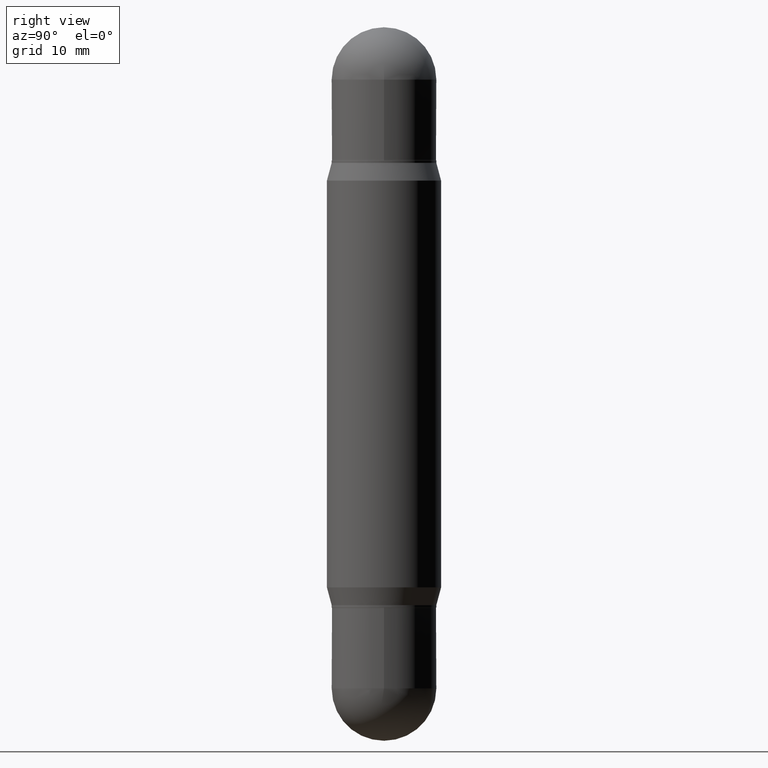
[diagram: clean part render]
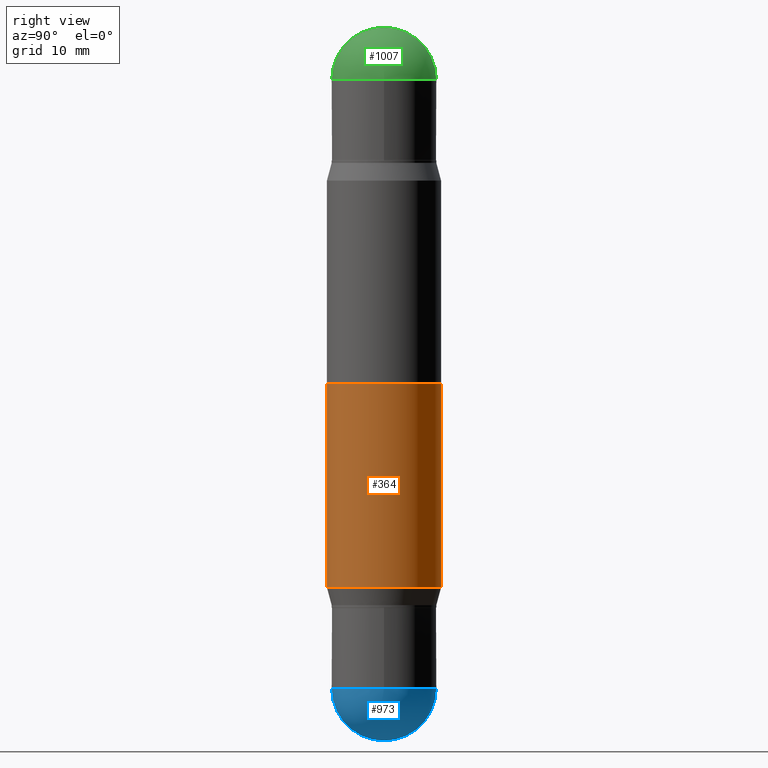
[diagram: same view with three faces highlighted in distinct colors, each labeled with its STEP entity id]
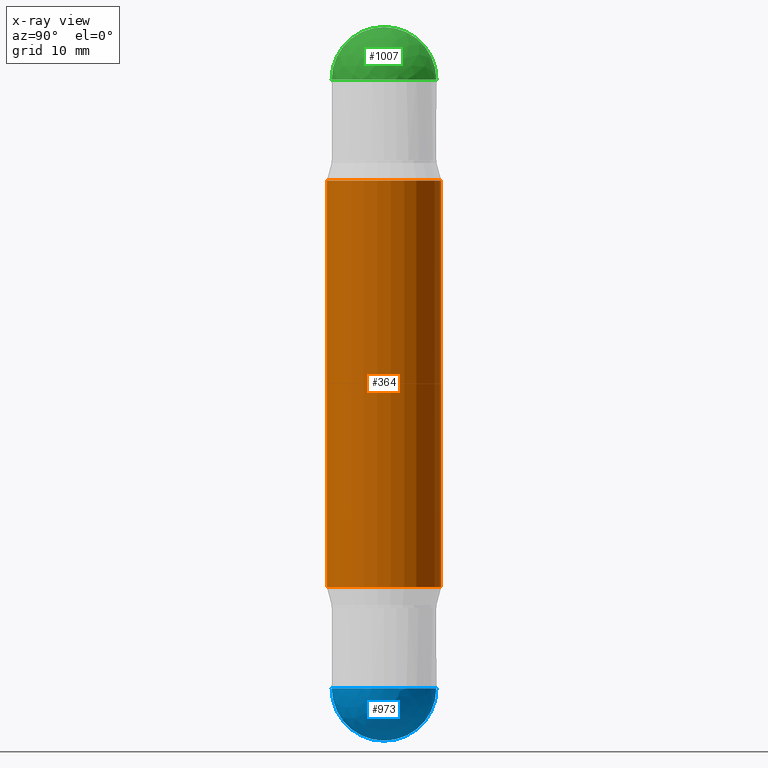
[diagram: x-ray of the same camera — body ghosted, the three highlighted faces saturated]
A machine part, right view with three faces highlighted in distinct colors.
The next image is the same camera in x-ray (body ghosted, the three faces saturated) — at least one of them is partly hidden behind the body in this view.
Their STEP definitions:

[orange] entity #364 — the highlighted cylindrical surface (partial cylindrical patch) has radius 5.9995 mm, axis along (-0, -0, -1).
#34 = LINE ( 'NONE', #677, #587 ) ;
#37 = DIRECTION ( 'NONE',  ( -6.982962677686265922E-15, -1.000000000000000000, 3.469747663417777397E-15 ) ) ;
#55 = LINE ( 'NONE', #143, #1042 ) ;
#72 = VERTEX_POINT ( 'NONE', #790 ) ;
#133 = ORIENTED_EDGE ( 'NONE', *, *, #1094, .T. ) ;
#139 = AXIS2_PLACEMENT_3D ( 'NONE', #256, #262, #855 ) ;
#143 = CARTESIAN_POINT ( 'NONE',  ( -1.649375784469495934E-15, -0.2362000000000102629, -2.952799999999998537 ) ) ;
#177 = DIRECTION ( 'NONE',  ( -6.982962677686265922E-15, -1.000000000000000000, 4.626330217890369336E-15 ) ) ;
#181 = VERTEX_POINT ( 'NONE', #560 ) ;
#194 = CIRCLE ( 'NONE', #139, 0.2361999999999999933 ) ;
#205 = CARTESIAN_POINT ( 'NONE',  ( -1.649375784469439333E-15, -0.2362000000000080979, -2.318265201631270589 ) ) ;
#223 = ORIENTED_EDGE ( 'NONE', *, *, #620, .F. ) ;
#226 = DIRECTION ( 'NONE',  ( -2.443493668867244593E-29, -3.476785957920772271E-15, -1.000000000000000000 ) ) ;
#241 = CARTESIAN_POINT ( 'NONE',  ( 0.000000000000000000, -1.029212584771408642E-14, -2.952799999999999869 ) ) ;
#256 = CARTESIAN_POINT ( 'NONE',  ( 5.664666342941258736E-29, -2.232013947946112511E-15, -0.6345347983687283921 ) ) ;
#262 = DIRECTION ( 'NONE',  ( 2.443493668867244874E-29, 3.476785957920772665E-15, 1.000000000000000000 ) ) ;
#346 = VERTEX_POINT ( 'NONE', #931 ) ;
#364 = ADVANCED_FACE ( 'NONE', ( #670 ), #1012, .T. ) ;
#407 = ORIENTED_EDGE ( 'NONE', *, *, #755, .F. ) ;
#457 = DIRECTION ( 'NONE',  ( -2.443493668867244874E-29, 3.494309847900201171E-15, 1.000000000000000000 ) ) ;
#469 = CIRCLE ( 'NONE', #700, 0.2361999999999999933 ) ;
#519 = EDGE_LOOP ( 'NONE', ( #223, #407, #133, #1096 ) ) ;
#538 = CARTESIAN_POINT ( 'NONE',  ( 5.664666342941258736E-29, -8.100736924104496665E-15, -2.318265201631271477 ) ) ;
#560 = CARTESIAN_POINT ( 'NONE',  ( 1.620449627073671761E-15, 0.2361999999999919164, -2.318265201631272365 ) ) ;
#582 = DIRECTION ( 'NONE',  ( -2.443493668867244874E-29, -3.476785957920772665E-15, -1.000000000000000000 ) ) ;
#587 = VECTOR ( 'NONE', #226, 39.37007874015748143 ) ;
#620 = EDGE_CURVE ( 'NONE', #346, #181, #34, .T. ) ;
#670 = FACE_OUTER_BOUND ( 'NONE', #519, .T. ) ;
#677 = CARTESIAN_POINT ( 'NONE',  ( 1.620449627073635473E-15, 0.2361999999999897237, -2.952800000000000757 ) ) ;
#700 = AXIS2_PLACEMENT_3D ( 'NONE', #538, #457, #37 ) ;
#755 = EDGE_CURVE ( 'NONE', #72, #346, #194, .T. ) ;
#790 = CARTESIAN_POINT ( 'NONE',  ( -1.649375784469439136E-15, -0.2362000000000022137, -0.6345347983687275040 ) ) ;
#830 = DIRECTION ( 'NONE',  ( -2.443493668867244593E-29, -3.476785957920772271E-15, -1.000000000000000000 ) ) ;
#855 = DIRECTION ( 'NONE',  ( -6.982962677686265922E-15, -1.000000000000000000, 3.469747663417777397E-15 ) ) ;
#895 = AXIS2_PLACEMENT_3D ( 'NONE', #241, #582, #177 ) ;
#931 = CARTESIAN_POINT ( 'NONE',  ( 1.620449627073692271E-15, 0.2361999999999977728, -0.6345347983687291693 ) ) ;
#971 = VERTEX_POINT ( 'NONE', #205 ) ;
#1011 = EDGE_CURVE ( 'NONE', #971, #181, #469, .T. ) ;
#1012 = CYLINDRICAL_SURFACE ( 'NONE', #895, 0.2361999999999999933 ) ;
#1042 = VECTOR ( 'NONE', #830, 39.37007874015748143 ) ;
#1094 = EDGE_CURVE ( 'NONE', #72, #971, #55, .T. ) ;
#1096 = ORIENTED_EDGE ( 'NONE', *, *, #1011, .T. ) ;

[blue] entity #973 — the highlighted spherical surface has radius 5.5004 mm.
#32 = DIRECTION ( 'NONE',  ( -1.000000000000000000, 6.982962677686265922E-15, -4.883557194083112340E-29 ) ) ;
#62 = AXIS2_PLACEMENT_3D ( 'NONE', #723, #32, #124 ) ;
#65 = ORIENTED_EDGE ( 'NONE', *, *, #1068, .T. ) ;
#124 = DIRECTION ( 'NONE',  ( 6.982962677686265922E-15, 1.000000000000000000, -2.523064413451173785E-15 ) ) ;
#146 = VERTEX_POINT ( 'NONE', #208 ) ;
#157 = CARTESIAN_POINT ( 'NONE',  ( 6.713302002095624841E-29, -9.522220978585379288E-15, -2.736249999999999627 ) ) ;
#178 = EDGE_CURVE ( 'NONE', #146, #394, #1073, .T. ) ;
#208 = CARTESIAN_POINT ( 'NONE',  ( 0.2165500000000001035, -1.048151426624058891E-14, -2.736249999999999627 ) ) ;
#219 = SPHERICAL_SURFACE ( 'NONE', #62, 0.2165500000000003811 ) ;
#227 = CARTESIAN_POINT ( 'NONE',  ( -1.538680294288431227E-15, -0.2165500000000098180, -2.736249999999999183 ) ) ;
#228 = ORIENTED_EDGE ( 'NONE', *, *, #178, .F. ) ;
#239 = VERTEX_POINT ( 'NONE', #227 ) ;
#258 = CARTESIAN_POINT ( 'NONE',  ( 1.512160567853029651E-15, 0.2165499999999906944, -2.736250000000000071 ) ) ;
#266 = CIRCLE ( 'NONE', #303, 0.2165500000000001035 ) ;
#303 = AXIS2_PLACEMENT_3D ( 'NONE', #589, #500, #681 ) ;
#310 = CARTESIAN_POINT ( 'NONE',  ( 7.252127585071107106E-29, -1.026504139929409708E-14, -2.952799999999999869 ) ) ;
#316 = DIRECTION ( 'NONE',  ( -7.105427357601001070E-15, -1.000000000000000000, 0.000000000000000000 ) ) ;
#319 = DIRECTION ( 'NONE',  ( 1.000000000000000000, -6.982962677686265922E-15, 4.883557194083112340E-29 ) ) ;
#355 = EDGE_CURVE ( 'NONE', #239, #146, #266, .T. ) ;
#367 = ORIENTED_EDGE ( 'NONE', *, *, #613, .F. ) ;
#386 = FACE_OUTER_BOUND ( 'NONE', #867, .T. ) ;
#394 = VERTEX_POINT ( 'NONE', #258 ) ;
#493 = DIRECTION ( 'NONE',  ( 1.000000000000000000, -6.982962677686270655E-15, 0.000000000000000000 ) ) ;
#500 = DIRECTION ( 'NONE',  ( -2.445468806185136597E-29, 3.491481338843145583E-15, 1.000000000000000000 ) ) ;
#569 = DIRECTION ( 'NONE',  ( -2.445468806185136597E-29, 3.491481338843145583E-15, 1.000000000000000000 ) ) ;
#589 = CARTESIAN_POINT ( 'NONE',  ( 6.691414020924079206E-29, -9.553565813409555750E-15, -2.736249999999999627 ) ) ;
#613 = EDGE_CURVE ( 'NONE', #1030, #239, #1077, .T. ) ;
#653 = DIRECTION ( 'NONE',  ( -1.000000000000000000, 7.105427357601001070E-15, -4.926315508542082329E-29 ) ) ;
#660 = AXIS2_PLACEMENT_3D ( 'NONE', #992, #569, #493 ) ;
#669 = CARTESIAN_POINT ( 'NONE',  ( 6.713302002095624841E-29, -9.522220978585379288E-15, -2.736249999999999627 ) ) ;
#681 = DIRECTION ( 'NONE',  ( 1.000000000000000000, -6.982962677686270655E-15, 0.000000000000000000 ) ) ;
#723 = CARTESIAN_POINT ( 'NONE',  ( 6.713302002095624841E-29, -9.522220978585379288E-15, -2.736249999999999627 ) ) ;
#737 = CIRCLE ( 'NONE', #1093, 0.2165500000000003811 ) ;
#757 = ORIENTED_EDGE ( 'NONE', *, *, #355, .F. ) ;
#867 = EDGE_LOOP ( 'NONE', ( #367, #65, #228, #757 ) ) ;
#973 = ADVANCED_FACE ( 'NONE', ( #386 ), #219, .T. ) ;
#992 = CARTESIAN_POINT ( 'NONE',  ( 6.691414020924079206E-29, -9.553565813409555750E-15, -2.736249999999999627 ) ) ;
#1010 = DIRECTION ( 'NONE',  ( 6.982962677686265922E-15, 1.000000000000000000, 0.000000000000000000 ) ) ;
#1030 = VERTEX_POINT ( 'NONE', #310 ) ;
#1068 = EDGE_CURVE ( 'NONE', #1030, #394, #737, .T. ) ;
#1073 = CIRCLE ( 'NONE', #660, 0.2165500000000001035 ) ;
#1077 = CIRCLE ( 'NONE', #1091, 0.2165500000000003811 ) ;
#1091 = AXIS2_PLACEMENT_3D ( 'NONE', #157, #653, #316 ) ;
#1093 = AXIS2_PLACEMENT_3D ( 'NONE', #669, #319, #1010 ) ;

[green] entity #1007 — the highlighted spherical surface has radius 5.5004 mm.
#19 = CARTESIAN_POINT ( 'NONE',  ( 6.713302002095624841E-29, -7.396859276218296457E-16, -0.2165500000000001868 ) ) ;
#56 = CIRCLE ( 'NONE', #336, 0.2165500000000003811 ) ;
#69 = DIRECTION ( 'NONE',  ( -1.000000000000000000, 6.982962677686265922E-15, 1.566701062080016245E-31 ) ) ;
#104 = DIRECTION ( 'NONE',  ( 2.445468806185136597E-29, 3.479614466977828254E-15, 1.000000000000000000 ) ) ;
#128 = FACE_OUTER_BOUND ( 'NONE', #314, .T. ) ;
#134 = CARTESIAN_POINT ( 'NONE',  ( 7.252127585071107106E-29, 2.708444841998830582E-17, 2.048885995248197414E-16 ) ) ;
#136 = EDGE_CURVE ( 'NONE', #1086, #832, #56, .T. ) ;
#191 = CARTESIAN_POINT ( 'NONE',  ( 6.691414020924079206E-29, -7.710307624460063053E-16, -0.2165500000000001868 ) ) ;
#314 = EDGE_LOOP ( 'NONE', ( #675, #981, #1071, #581 ) ) ;
#315 = DIRECTION ( 'NONE',  ( 1.000000000000000000, -6.982962677686265922E-15, 0.000000000000000000 ) ) ;
#336 = AXIS2_PLACEMENT_3D ( 'NONE', #19, #705, #715 ) ;
#352 = VERTEX_POINT ( 'NONE', #514 ) ;
#379 = DIRECTION ( 'NONE',  ( 1.000000000000000000, -6.982962677686265922E-15, -1.566701062080038578E-31 ) ) ;
#401 = EDGE_CURVE ( 'NONE', #1086, #506, #984, .T. ) ;
#506 = VERTEX_POINT ( 'NONE', #618 ) ;
#514 = CARTESIAN_POINT ( 'NONE',  ( 0.2165500000000001035, -2.865417820986029909E-15, -0.2165500000000001868 ) ) ;
#534 = AXIS2_PLACEMENT_3D ( 'NONE', #605, #69, #1098 ) ;
#581 = ORIENTED_EDGE ( 'NONE', *, *, #1043, .T. ) ;
#585 = DIRECTION ( 'NONE',  ( 1.000000000000000000, -6.982962677686265922E-15, 0.000000000000000000 ) ) ;
#588 = AXIS2_PLACEMENT_3D ( 'NONE', #191, #104, #315 ) ;
#605 = CARTESIAN_POINT ( 'NONE',  ( 6.713302002095624841E-29, -7.396859276218296457E-16, -0.2165500000000001868 ) ) ;
#618 = CARTESIAN_POINT ( 'NONE',  ( 1.512160567853029651E-15, 0.2165499999999994929, -0.2165500000000009362 ) ) ;
#631 = EDGE_CURVE ( 'NONE', #832, #352, #736, .T. ) ;
#675 = ORIENTED_EDGE ( 'NONE', *, *, #401, .F. ) ;
#705 = DIRECTION ( 'NONE',  ( 1.000000000000000000, -6.860497997771530774E-15, -5.827999781331232286E-31 ) ) ;
#715 = DIRECTION ( 'NONE',  ( 6.860497997771531562E-15, 1.000000000000000000, 0.000000000000000000 ) ) ;
#736 = CIRCLE ( 'NONE', #1005, 0.2165500000000001035 ) ;
#743 = CARTESIAN_POINT ( 'NONE',  ( 6.691414020924079206E-29, -7.710307624460063053E-16, -0.2165500000000001868 ) ) ;
#805 = DIRECTION ( 'NONE',  ( 6.982962677686265922E-15, 1.000000000000000000, -3.469213568495363757E-15 ) ) ;
#832 = VERTEX_POINT ( 'NONE', #1047 ) ;
#887 = CARTESIAN_POINT ( 'NONE',  ( 6.713302002095624841E-29, -7.396859276218296457E-16, -0.2165500000000001868 ) ) ;
#930 = CIRCLE ( 'NONE', #588, 0.2165500000000001035 ) ;
#981 = ORIENTED_EDGE ( 'NONE', *, *, #136, .T. ) ;
#984 = CIRCLE ( 'NONE', #534, 0.2165500000000003811 ) ;
#988 = AXIS2_PLACEMENT_3D ( 'NONE', #887, #379, #805 ) ;
#1005 = AXIS2_PLACEMENT_3D ( 'NONE', #743, #1020, #585 ) ;
#1007 = ADVANCED_FACE ( 'NONE', ( #128 ), #1062, .T. ) ;
#1020 = DIRECTION ( 'NONE',  ( 2.445468806185136597E-29, 3.479614466977828254E-15, 1.000000000000000000 ) ) ;
#1043 = EDGE_CURVE ( 'NONE', #352, #506, #930, .T. ) ;
#1047 = CARTESIAN_POINT ( 'NONE',  ( -1.485640841417359468E-15, -0.2165500000000009917, -0.2165499999999994374 ) ) ;
#1062 = SPHERICAL_SURFACE ( 'NONE', #988, 0.2165500000000003811 ) ;
#1071 = ORIENTED_EDGE ( 'NONE', *, *, #631, .T. ) ;
#1086 = VERTEX_POINT ( 'NONE', #134 ) ;
#1098 = DIRECTION ( 'NONE',  ( -6.982962677686265922E-15, -1.000000000000000000, 0.000000000000000000 ) ) ;